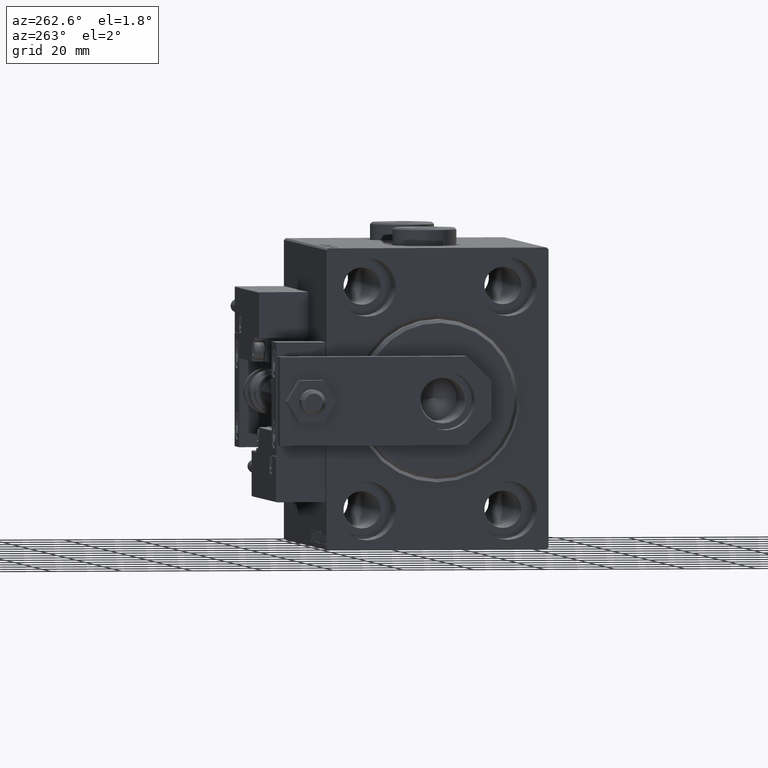
[diagram: clean part render]
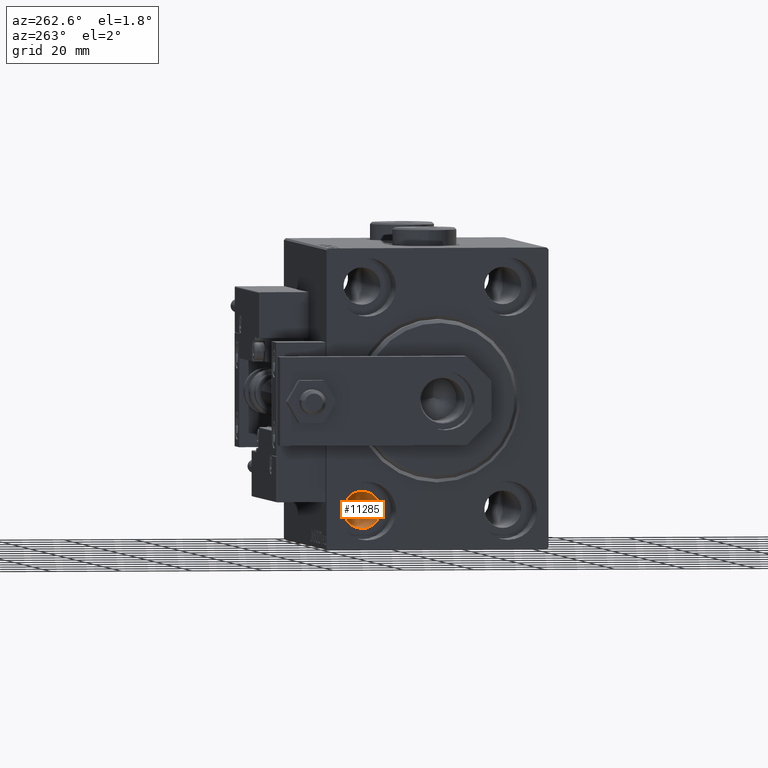
[diagram: same view with one face highlighted and labeled with its STEP entity id]
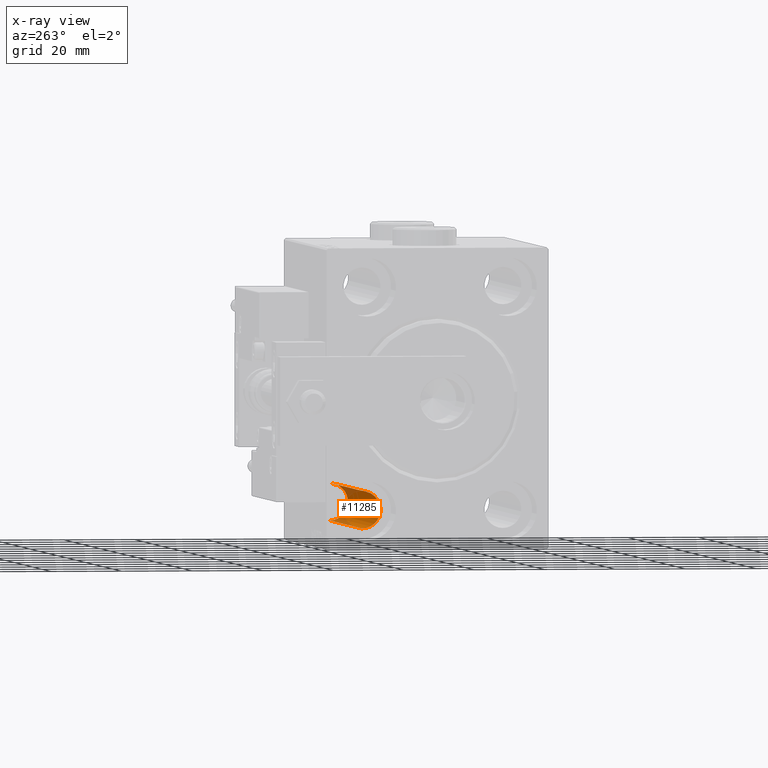
[diagram: x-ray of the same camera — body ghosted, the highlighted face saturated]
A machine part, auxiliary view. The second image highlights one B-rep face of the part: STEP entity #11285.
The next image is the same camera in x-ray: the body ghosted, the highlighted face saturated — about 15% of this face is hidden behind the body in this view.
In plain terms, the highlighted cylindrical surface (edge-blend (fillet) strip) has radius 5.25 mm, axis along (-1, -0, -0).
Its self-contained STEP definition (entity closure, byte-faithful):
#3826 = AXIS2_PLACEMENT_3D ( 'NONE', #51369, #51114, #27382 ) ;
#7101 = EDGE_CURVE ( 'NONE', #8199, #40137, #36868, .T. ) ;
#7117 = CARTESIAN_POINT ( 'NONE',  ( 82.00000000000000000, 19.99999999999999645, -26.24999999999999289 ) ) ;
#8199 = VERTEX_POINT ( 'NONE', #12067 ) ;
#8365 = CARTESIAN_POINT ( 'NONE',  ( 93.00000000000000000, 19.99999999999999645, -26.24999999999999289 ) ) ;
#10878 = EDGE_CURVE ( 'NONE', #8199, #14582, #21018, .T. ) ;
#10930 = DIRECTION ( 'NONE',  ( 0.000000000000000000, 0.000000000000000000, 1.000000000000000000 ) ) ;
#11285 = ADVANCED_FACE ( 'NONE', ( #47153 ), #15607, .F. ) ;
#11437 = CARTESIAN_POINT ( 'NONE',  ( 93.00000000000000000, 19.99999999999999645, -31.49999999999999289 ) ) ;
#11694 = DIRECTION ( 'NONE',  ( -1.000000000000000000, -0.000000000000000000, -0.000000000000000000 ) ) ;
#11774 = VECTOR ( 'NONE', #33491, 1000.000000000000000 ) ;
#11885 = AXIS2_PLACEMENT_3D ( 'NONE', #50219, #14509, #20477 ) ;
#12067 = CARTESIAN_POINT ( 'NONE',  ( 82.00000000000000000, 19.99999999999999645, -36.74999999999999289 ) ) ;
#12276 = LINE ( 'NONE', #8365, #42407 ) ;
#14509 = DIRECTION ( 'NONE',  ( -1.000000000000000000, -0.000000000000000000, -0.000000000000000000 ) ) ;
#14582 = VERTEX_POINT ( 'NONE', #37349 ) ;
#14856 = EDGE_LOOP ( 'NONE', ( #25373, #26505, #15820, #30609 ) ) ;
#15607 = CYLINDRICAL_SURFACE ( 'NONE', #43492, 5.250000000000000888 ) ;
#15820 = ORIENTED_EDGE ( 'NONE', *, *, #42720, .T. ) ;
#16727 = DIRECTION ( 'NONE',  ( -1.000000000000000000, -0.000000000000000000, -0.000000000000000000 ) ) ;
#18590 = VERTEX_POINT ( 'NONE', #41408 ) ;
#20477 = DIRECTION ( 'NONE',  ( 0.000000000000000000, 0.000000000000000000, -1.000000000000000000 ) ) ;
#21018 = LINE ( 'NONE', #37412, #11774 ) ;
#25373 = ORIENTED_EDGE ( 'NONE', *, *, #7101, .F. ) ;
#26505 = ORIENTED_EDGE ( 'NONE', *, *, #10878, .T. ) ;
#27382 = DIRECTION ( 'NONE',  ( 0.000000000000000000, 0.000000000000000000, 1.000000000000000000 ) ) ;
#30609 = ORIENTED_EDGE ( 'NONE', *, *, #34948, .F. ) ;
#33491 = DIRECTION ( 'NONE',  ( -1.000000000000000000, -0.000000000000000000, -0.000000000000000000 ) ) ;
#34948 = EDGE_CURVE ( 'NONE', #40137, #18590, #12276, .T. ) ;
#35485 = CIRCLE ( 'NONE', #3826, 5.250000000000000888 ) ;
#36868 = CIRCLE ( 'NONE', #11885, 5.249999999999997335 ) ;
#37349 = CARTESIAN_POINT ( 'NONE',  ( 10.99999999999999645, 19.99999999999999645, -36.74999999999999289 ) ) ;
#37412 = CARTESIAN_POINT ( 'NONE',  ( 93.00000000000000000, 19.99999999999999645, -36.74999999999999289 ) ) ;
#40137 = VERTEX_POINT ( 'NONE', #7117 ) ;
#41408 = CARTESIAN_POINT ( 'NONE',  ( 10.99999999999999645, 19.99999999999999645, -26.24999999999999289 ) ) ;
#42407 = VECTOR ( 'NONE', #16727, 1000.000000000000000 ) ;
#42720 = EDGE_CURVE ( 'NONE', #14582, #18590, #35485, .T. ) ;
#43492 = AXIS2_PLACEMENT_3D ( 'NONE', #11437, #11694, #10930 ) ;
#47153 = FACE_OUTER_BOUND ( 'NONE', #14856, .T. ) ;
#50219 = CARTESIAN_POINT ( 'NONE',  ( 82.00000000000000000, 19.99999999999999645, -31.49999999999999289 ) ) ;
#51114 = DIRECTION ( 'NONE',  ( -1.000000000000000000, 0.000000000000000000, 0.000000000000000000 ) ) ;
#51369 = CARTESIAN_POINT ( 'NONE',  ( 10.99999999999999645, 19.99999999999999645, -31.49999999999999289 ) ) ;